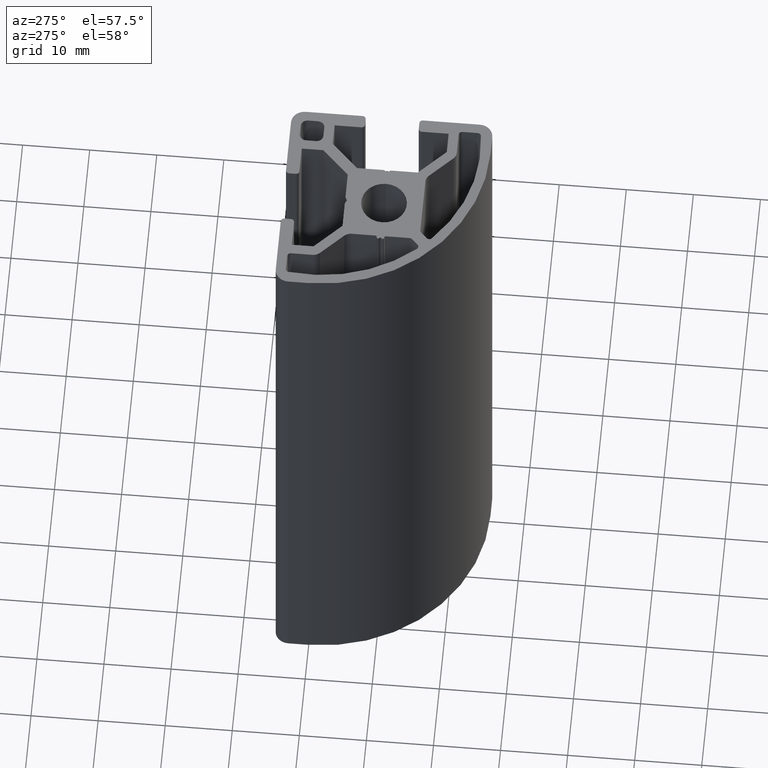
[diagram: clean part render]
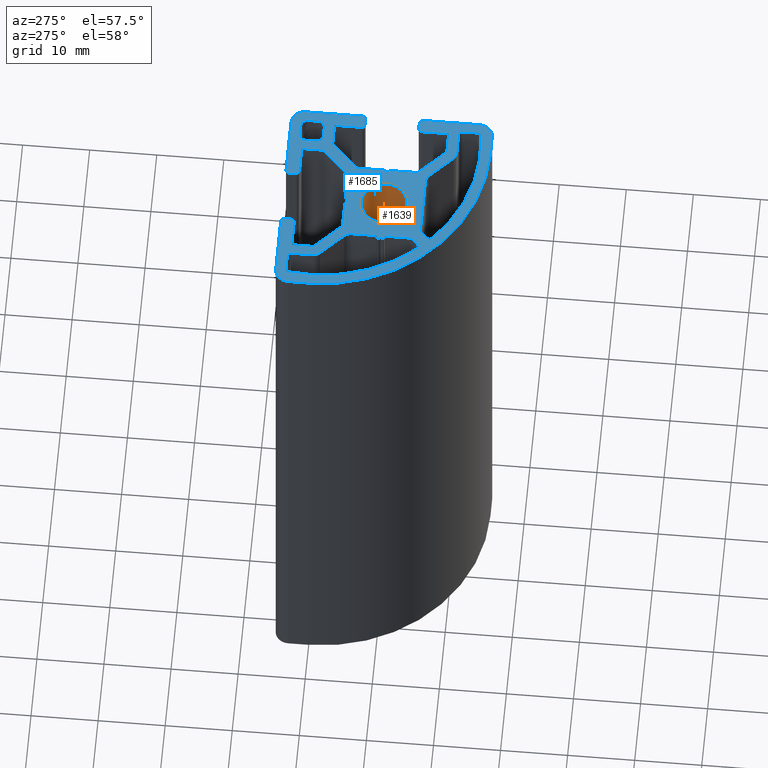
[diagram: same view with the hole feature highlighted: cylindrical wall and planar end face, labeled with their STEP entity ids]
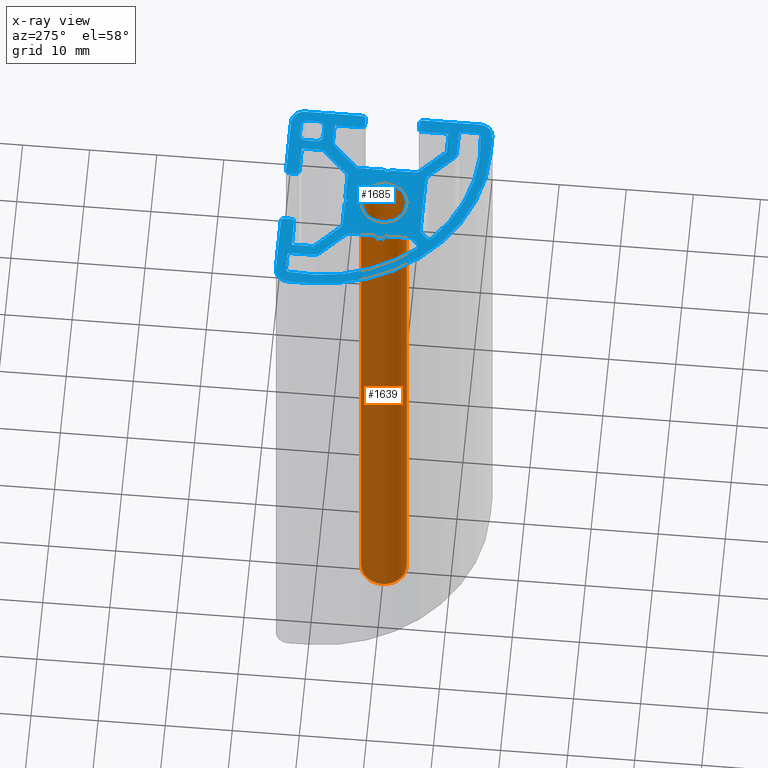
[diagram: x-ray of the same camera — body ghosted, the hole faces saturated]
A machine part, auxiliary view. The highlighted faces form one hole feature of diameter 6.8 mm: the cylindrical wall (entity #1639, orange) and its adjacent planar end face (entity #1685, blue) — they share a circular edge in the B-rep.
The next image is the same camera in x-ray (body ghosted, the hole faces saturated) — the bore reads through the body.
Wall:
#15=FACE_BOUND('',#191,.T.);
#106=FACE_OUTER_BOUND('',#190,.T.);
#190=EDGE_LOOP('',(#1209));
#191=EDGE_LOOP('',(#1210));
#642=CIRCLE('',#1758,3.4);
#643=CIRCLE('',#1759,3.4);
#738=VERTEX_POINT('',#2513);
#739=VERTEX_POINT('',#2515);
#933=EDGE_CURVE('',#738,#738,#642,.T.);
#934=EDGE_CURVE('',#739,#739,#643,.T.);
#1209=ORIENTED_EDGE('',*,*,#933,.F.);
#1210=ORIENTED_EDGE('',*,*,#934,.F.);
#1591=CYLINDRICAL_SURFACE('',#1757,3.4);
#1639=ADVANCED_FACE('',(#106,#15),#1591,.F.);
#1757=AXIS2_PLACEMENT_3D('',#2512,#2033,#2034);
#1758=AXIS2_PLACEMENT_3D('',#2514,#2035,#2036);
#1759=AXIS2_PLACEMENT_3D('',#2516,#2037,#2038);
#2033=DIRECTION('center_axis',(0.,0.,1.));
#2034=DIRECTION('ref_axis',(-1.,0.,0.));
#2035=DIRECTION('center_axis',(0.,0.,-1.));
#2036=DIRECTION('ref_axis',(-1.,0.,0.));
#2037=DIRECTION('center_axis',(0.,0.,1.));
#2038=DIRECTION('ref_axis',(-1.,0.,0.));
#2512=CARTESIAN_POINT('Origin',(0.,0.,0.));
#2513=CARTESIAN_POINT('',(3.4,-4.163799117101E-16,100.));
#2514=CARTESIAN_POINT('Origin',(0.,0.,100.));
#2515=CARTESIAN_POINT('',(3.4,4.163799117101E-16,0.));
#2516=CARTESIAN_POINT('Origin',(0.,0.,0.));
End face:
#16=FACE_BOUND('',#238,.T.);
#17=FACE_BOUND('',#239,.T.);
#18=FACE_BOUND('',#240,.T.);
#19=FACE_BOUND('',#241,.T.);
#71=PLANE('',#1831);
#152=FACE_OUTER_BOUND('',#237,.T.);
#237=EDGE_LOOP('',(#1391,#1392,#1393,#1394,#1395,#1396,#1397,#1398,#1399,
#1400,#1401,#1402,#1403,#1404,#1405,#1406,#1407,#1408,#1409,#1410,#1411,
#1412,#1413,#1414,#1415,#1416,#1417,#1418,#1419,#1420,#1421,#1422,#1423,
#1424,#1425,#1426,#1427,#1428,#1429,#1430,#1431,#1432));
#238=EDGE_LOOP('',(#1433,#1434,#1435,#1436,#1437,#1438,#1439,#1440));
#239=EDGE_LOOP('',(#1441));
#240=EDGE_LOOP('',(#1442,#1443,#1444,#1445,#1446,#1447,#1448,#1449,#1450,
#1451,#1452,#1453));
#241=EDGE_LOOP('',(#1454,#1455,#1456,#1457,#1458,#1459,#1460,#1461,#1462,
#1463,#1464,#1465,#1466,#1467,#1468,#1469,#1470,#1471,#1472));
#255=LINE('',#2343,#434);
#259=LINE('',#2355,#438);
#263=LINE('',#2367,#442);
#267=LINE('',#2379,#446);
#270=LINE('',#2385,#449);
#274=LINE('',#2397,#453);
#277=LINE('',#2403,#456);
#281=LINE('',#2415,#460);
#284=LINE('',#2421,#463);
#288=LINE('',#2433,#467);
#291=LINE('',#2443,#470);
#296=LINE('',#2457,#475);
#300=LINE('',#2469,#479);
#304=LINE('',#2481,#483);
#310=LINE('',#2505,#489);
#315=LINE('',#2529,#494);
#319=LINE('',#2537,#498);
#322=LINE('',#2543,#501);
#325=LINE('',#2549,#504);
#328=LINE('',#2555,#507);
#331=LINE('',#2561,#510);
#335=LINE('',#2573,#514);
#341=LINE('',#2594,#520);
#345=LINE('',#2606,#524);
#348=LINE('',#2612,#527);
#351=LINE('',#2618,#530);
#354=LINE('',#2623,#533);
#356=LINE('',#2628,#535);
#360=LINE('',#2636,#539);
#363=LINE('',#2642,#542);
#366=LINE('',#2648,#545);
#370=LINE('',#2660,#549);
#376=LINE('',#2681,#555);
#380=LINE('',#2693,#559);
#383=LINE('',#2699,#562);
#386=LINE('',#2705,#565);
#389=LINE('',#2711,#568);
#392=LINE('',#2717,#571);
#395=LINE('',#2722,#574);
#399=LINE('',#2735,#578);
#403=LINE('',#2747,#582);
#407=LINE('',#2759,#586);
#411=LINE('',#2770,#590);
#413=LINE('',#2774,#592);
#418=LINE('',#2783,#597);
#419=LINE('',#2786,#598);
#424=LINE('',#2795,#603);
#425=LINE('',#2798,#604);
#426=LINE('',#2801,#605);
#434=VECTOR('',#1863,2.30350930433294);
#438=VECTOR('',#1875,3.22720692200534);
#442=VECTOR('',#1887,4.6970550596017);
#446=VECTOR('',#1899,3.69617781933827);
#449=VECTOR('',#1904,0.379519655581904);
#453=VECTOR('',#1916,0.321649093823866);
#456=VECTOR('',#1921,0.321649093823866);
#460=VECTOR('',#1933,0.379519655930177);
#463=VECTOR('',#1938,3.68612460949775);
#467=VECTOR('',#1950,1.30567125829762);
#470=VECTOR('',#1961,8.65025255662917);
#475=VECTOR('',#1974,4.69705629237777);
#479=VECTOR('',#1986,3.22720633861424);
#483=VECTOR('',#1998,2.30350872507388);
#489=VECTOR('',#2024,1.30567179823684);
#494=VECTOR('',#2049,0.599999998036611);
#498=VECTOR('',#2055,0.599999998036732);
#501=VECTOR('',#2060,4.00759256455896);
#504=VECTOR('',#2065,5.61837777381443);
#507=VECTOR('',#2070,3.22720610284211);
#510=VECTOR('',#2075,4.00000079419816);
#514=VECTOR('',#2087,1.00000000405103);
#520=VECTOR('',#2107,1.00000000405103);
#524=VECTOR('',#2119,3.99999920386029);
#527=VECTOR('',#2124,3.22720691573065);
#530=VECTOR('',#2129,5.61837660081023);
#533=VECTOR('',#2134,4.00759173045945);
#535=VECTOR('',#2138,4.00759256455896);
#539=VECTOR('',#2144,5.61837660247784);
#542=VECTOR('',#2149,3.22720633271489);
#545=VECTOR('',#2154,4.00000022274413);
#549=VECTOR('',#2166,1.00000000405103);
#555=VECTOR('',#2186,1.00000000405103);
#559=VECTOR('',#2198,3.99999977285731);
#562=VECTOR('',#2203,3.22720633253755);
#565=VECTOR('',#2208,5.61837662585642);
#568=VECTOR('',#2213,4.00759254881794);
#571=VECTOR('',#2218,0.599999998036731);
#574=VECTOR('',#2223,0.599999998036731);
#578=VECTOR('',#2235,1.49999999459971);
#582=VECTOR('',#2247,1.49999999355515);
#586=VECTOR('',#2259,1.49999999459971);
#590=VECTOR('',#2271,1.49999999355732);
#592=VECTOR('',#2275,2.99999997642104);
#597=VECTOR('',#2282,8.50000003915042);
#598=VECTOR('',#2285,8.49999995006791);
#603=VECTOR('',#2292,8.49999997677015);
#604=VECTOR('',#2295,2.99999995855649);
#605=VECTOR('',#2298,8.49999999314448);
#610=CIRCLE('',#1695,23.5);
#612=CIRCLE('',#1698,0.500000002025547);
#614=CIRCLE('',#1702,0.500000002025547);
#616=CIRCLE('',#1706,1.50000000000023);
#618=CIRCLE('',#1710,1.50000000000023);
#620=CIRCLE('',#1715,0.180000344789906);
#622=CIRCLE('',#1720,0.180000344789906);
#624=CIRCLE('',#1725,0.500000002025547);
#626=CIRCLE('',#1729,0.500000002025547);
#628=CIRCLE('',#1733,1.50000000000023);
#630=CIRCLE('',#1737,1.50000000000023);
#632=CIRCLE('',#1741,0.500000002025547);
#634=CIRCLE('',#1745,0.500000002025547);
#636=CIRCLE('',#1748,23.5);
#638=CIRCLE('',#1751,0.500000002025547);
#640=CIRCLE('',#1755,0.500000002025547);
#642=CIRCLE('',#1758,3.4);
#644=CIRCLE('',#1761,24.9999999999996);
#646=CIRCLE('',#1770,0.500000002025547);
#648=CIRCLE('',#1774,0.500000002025547);
#650=CIRCLE('',#1777,0.500000002025547);
#652=CIRCLE('',#1781,0.500000002025547);
#654=CIRCLE('',#1792,0.500000002025547);
#656=CIRCLE('',#1796,0.500000002025547);
#658=CIRCLE('',#1799,0.500000002025548);
#660=CIRCLE('',#1803,0.500000002025547);
#662=CIRCLE('',#1812,1.00000000405112);
#664=CIRCLE('',#1816,1.00000000405112);
#666=CIRCLE('',#1820,1.00000000405113);
#668=CIRCLE('',#1824,1.00000000405113);
#670=CIRCLE('',#1832,2.00000000847673);
#671=CIRCLE('',#1833,2.00000000847673);
#672=CIRCLE('',#1834,2.00000000847673);
#676=VERTEX_POINT('',#2327);
#677=VERTEX_POINT('',#2328);
#680=VERTEX_POINT('',#2336);
#682=VERTEX_POINT('',#2342);
#684=VERTEX_POINT('',#2348);
#686=VERTEX_POINT('',#2354);
#688=VERTEX_POINT('',#2360);
#690=VERTEX_POINT('',#2366);
#692=VERTEX_POINT('',#2372);
#694=VERTEX_POINT('',#2378);
#696=VERTEX_POINT('',#2384);
#698=VERTEX_POINT('',#2390);
#700=VERTEX_POINT('',#2396);
#702=VERTEX_POINT('',#2402);
#704=VERTEX_POINT('',#2408);
#706=VERTEX_POINT('',#2414);
#708=VERTEX_POINT('',#2420);
#710=VERTEX_POINT('',#2426);
#712=VERTEX_POINT('',#2432);
#714=VERTEX_POINT('',#2441);
#715=VERTEX_POINT('',#2442);
#718=VERTEX_POINT('',#2450);
#720=VERTEX_POINT('',#2456);
#722=VERTEX_POINT('',#2462);
#724=VERTEX_POINT('',#2468);
#726=VERTEX_POINT('',#2474);
#728=VERTEX_POINT('',#2480);
#730=VERTEX_POINT('',#2486);
#732=VERTEX_POINT('',#2492);
#734=VERTEX_POINT('',#2498);
#736=VERTEX_POINT('',#2504);
#738=VERTEX_POINT('',#2513);
#740=VERTEX_POINT('',#2518);
#741=VERTEX_POINT('',#2519);
#744=VERTEX_POINT('',#2527);
#745=VERTEX_POINT('',#2528);
#748=VERTEX_POINT('',#2536);
#750=VERTEX_POINT('',#2542);
#752=VERTEX_POINT('',#2548);
#754=VERTEX_POINT('',#2554);
#756=VERTEX_POINT('',#2560);
#758=VERTEX_POINT('',#2566);
#760=VERTEX_POINT('',#2572);
#762=VERTEX_POINT('',#2578);
#764=VERTEX_POINT('',#2584);
#765=VERTEX_POINT('',#2585);
#768=VERTEX_POINT('',#2593);
#770=VERTEX_POINT('',#2599);
#772=VERTEX_POINT('',#2605);
#774=VERTEX_POINT('',#2611);
#776=VERTEX_POINT('',#2617);
#778=VERTEX_POINT('',#2626);
#779=VERTEX_POINT('',#2627);
#782=VERTEX_POINT('',#2635);
#784=VERTEX_POINT('',#2641);
#786=VERTEX_POINT('',#2647);
#788=VERTEX_POINT('',#2653);
#790=VERTEX_POINT('',#2659);
#792=VERTEX_POINT('',#2665);
#794=VERTEX_POINT('',#2671);
#795=VERTEX_POINT('',#2672);
#798=VERTEX_POINT('',#2680);
#800=VERTEX_POINT('',#2686);
#802=VERTEX_POINT('',#2692);
#804=VERTEX_POINT('',#2698);
#806=VERTEX_POINT('',#2704);
#808=VERTEX_POINT('',#2710);
#810=VERTEX_POINT('',#2716);
#812=VERTEX_POINT('',#2725);
#813=VERTEX_POINT('',#2726);
#816=VERTEX_POINT('',#2734);
#818=VERTEX_POINT('',#2740);
#820=VERTEX_POINT('',#2746);
#822=VERTEX_POINT('',#2752);
#824=VERTEX_POINT('',#2758);
#826=VERTEX_POINT('',#2764);
#828=VERTEX_POINT('',#2773);
#831=VERTEX_POINT('',#2781);
#832=VERTEX_POINT('',#2785);
#835=VERTEX_POINT('',#2793);
#836=VERTEX_POINT('',#2797);
#837=VERTEX_POINT('',#2799);
#840=EDGE_CURVE('',#676,#677,#610,.T.);
#844=EDGE_CURVE('',#677,#680,#612,.T.);
#847=EDGE_CURVE('',#680,#682,#255,.T.);
#850=EDGE_CURVE('',#682,#684,#614,.T.);
#853=EDGE_CURVE('',#684,#686,#259,.T.);
#856=EDGE_CURVE('',#686,#688,#616,.T.);
#859=EDGE_CURVE('',#688,#690,#263,.T.);
#862=EDGE_CURVE('',#690,#692,#618,.T.);
#865=EDGE_CURVE('',#692,#694,#267,.T.);
#868=EDGE_CURVE('',#694,#696,#270,.T.);
#871=EDGE_CURVE('',#696,#698,#620,.T.);
#874=EDGE_CURVE('',#698,#700,#274,.T.);
#877=EDGE_CURVE('',#700,#702,#277,.T.);
#880=EDGE_CURVE('',#702,#704,#622,.T.);
#883=EDGE_CURVE('',#704,#706,#281,.T.);
#886=EDGE_CURVE('',#706,#708,#284,.T.);
#889=EDGE_CURVE('',#708,#710,#624,.T.);
#892=EDGE_CURVE('',#710,#712,#288,.T.);
#895=EDGE_CURVE('',#712,#676,#626,.T.);
#897=EDGE_CURVE('',#714,#715,#291,.T.);
#901=EDGE_CURVE('',#715,#718,#628,.T.);
#904=EDGE_CURVE('',#718,#720,#296,.T.);
#907=EDGE_CURVE('',#720,#722,#630,.T.);
#910=EDGE_CURVE('',#722,#724,#300,.T.);
#913=EDGE_CURVE('',#724,#726,#632,.T.);
#916=EDGE_CURVE('',#726,#728,#304,.T.);
#919=EDGE_CURVE('',#728,#730,#634,.T.);
#922=EDGE_CURVE('',#730,#732,#636,.T.);
#925=EDGE_CURVE('',#732,#734,#638,.T.);
#928=EDGE_CURVE('',#734,#736,#310,.T.);
#931=EDGE_CURVE('',#736,#714,#640,.T.);
#933=EDGE_CURVE('',#738,#738,#642,.T.);
#935=EDGE_CURVE('',#740,#741,#644,.T.);
#939=EDGE_CURVE('',#744,#745,#315,.T.);
#943=EDGE_CURVE('',#748,#744,#319,.T.);
#946=EDGE_CURVE('',#750,#748,#322,.T.);
#949=EDGE_CURVE('',#752,#750,#325,.T.);
#952=EDGE_CURVE('',#754,#752,#328,.T.);
#955=EDGE_CURVE('',#756,#754,#331,.T.);
#958=EDGE_CURVE('',#758,#756,#646,.T.);
#961=EDGE_CURVE('',#760,#758,#335,.T.);
#964=EDGE_CURVE('',#762,#760,#648,.T.);
#967=EDGE_CURVE('',#764,#765,#650,.T.);
#971=EDGE_CURVE('',#768,#764,#341,.T.);
#974=EDGE_CURVE('',#770,#768,#652,.T.);
#977=EDGE_CURVE('',#772,#770,#345,.T.);
#980=EDGE_CURVE('',#774,#772,#348,.T.);
#983=EDGE_CURVE('',#776,#774,#351,.T.);
#986=EDGE_CURVE('',#745,#776,#354,.T.);
#988=EDGE_CURVE('',#778,#779,#356,.T.);
#992=EDGE_CURVE('',#779,#782,#360,.T.);
#995=EDGE_CURVE('',#782,#784,#363,.T.);
#998=EDGE_CURVE('',#784,#786,#366,.T.);
#1001=EDGE_CURVE('',#786,#788,#654,.T.);
#1004=EDGE_CURVE('',#788,#790,#370,.T.);
#1007=EDGE_CURVE('',#790,#792,#656,.T.);
#1010=EDGE_CURVE('',#794,#795,#658,.T.);
#1014=EDGE_CURVE('',#795,#798,#376,.T.);
#1017=EDGE_CURVE('',#798,#800,#660,.T.);
#1020=EDGE_CURVE('',#800,#802,#380,.T.);
#1023=EDGE_CURVE('',#802,#804,#383,.T.);
#1026=EDGE_CURVE('',#804,#806,#386,.T.);
#1029=EDGE_CURVE('',#806,#808,#389,.T.);
#1032=EDGE_CURVE('',#808,#810,#392,.T.);
#1035=EDGE_CURVE('',#810,#778,#395,.T.);
#1037=EDGE_CURVE('',#812,#813,#662,.T.);
#1041=EDGE_CURVE('',#816,#812,#399,.T.);
#1044=EDGE_CURVE('',#818,#816,#664,.T.);
#1047=EDGE_CURVE('',#820,#818,#403,.T.);
#1050=EDGE_CURVE('',#822,#820,#666,.T.);
#1053=EDGE_CURVE('',#824,#822,#407,.T.);
#1056=EDGE_CURVE('',#826,#824,#668,.T.);
#1059=EDGE_CURVE('',#813,#826,#411,.T.);
#1061=EDGE_CURVE('',#740,#828,#413,.T.);
#1066=EDGE_CURVE('',#831,#765,#418,.T.);
#1067=EDGE_CURVE('',#762,#832,#419,.T.);
#1072=EDGE_CURVE('',#835,#792,#424,.T.);
#1073=EDGE_CURVE('',#836,#741,#425,.T.);
#1074=EDGE_CURVE('',#837,#836,#670,.T.);
#1075=EDGE_CURVE('',#794,#837,#426,.T.);
#1076=EDGE_CURVE('',#832,#835,#671,.T.);
#1077=EDGE_CURVE('',#828,#831,#672,.T.);
#1391=ORIENTED_EDGE('',*,*,#935,.T.);
#1392=ORIENTED_EDGE('',*,*,#1073,.F.);
#1393=ORIENTED_EDGE('',*,*,#1074,.F.);
#1394=ORIENTED_EDGE('',*,*,#1075,.F.);
#1395=ORIENTED_EDGE('',*,*,#1010,.T.);
#1396=ORIENTED_EDGE('',*,*,#1014,.T.);
#1397=ORIENTED_EDGE('',*,*,#1017,.T.);
#1398=ORIENTED_EDGE('',*,*,#1020,.T.);
#1399=ORIENTED_EDGE('',*,*,#1023,.T.);
#1400=ORIENTED_EDGE('',*,*,#1026,.T.);
#1401=ORIENTED_EDGE('',*,*,#1029,.T.);
#1402=ORIENTED_EDGE('',*,*,#1032,.T.);
#1403=ORIENTED_EDGE('',*,*,#1035,.T.);
#1404=ORIENTED_EDGE('',*,*,#988,.T.);
#1405=ORIENTED_EDGE('',*,*,#992,.T.);
#1406=ORIENTED_EDGE('',*,*,#995,.T.);
#1407=ORIENTED_EDGE('',*,*,#998,.T.);
#1408=ORIENTED_EDGE('',*,*,#1001,.T.);
#1409=ORIENTED_EDGE('',*,*,#1004,.T.);
#1410=ORIENTED_EDGE('',*,*,#1007,.T.);
#1411=ORIENTED_EDGE('',*,*,#1072,.F.);
#1412=ORIENTED_EDGE('',*,*,#1076,.F.);
#1413=ORIENTED_EDGE('',*,*,#1067,.F.);
#1414=ORIENTED_EDGE('',*,*,#964,.T.);
#1415=ORIENTED_EDGE('',*,*,#961,.T.);
#1416=ORIENTED_EDGE('',*,*,#958,.T.);
#1417=ORIENTED_EDGE('',*,*,#955,.T.);
#1418=ORIENTED_EDGE('',*,*,#952,.T.);
#1419=ORIENTED_EDGE('',*,*,#949,.T.);
#1420=ORIENTED_EDGE('',*,*,#946,.T.);
#1421=ORIENTED_EDGE('',*,*,#943,.T.);
#1422=ORIENTED_EDGE('',*,*,#939,.T.);
#1423=ORIENTED_EDGE('',*,*,#986,.T.);
#1424=ORIENTED_EDGE('',*,*,#983,.T.);
#1425=ORIENTED_EDGE('',*,*,#980,.T.);
#1426=ORIENTED_EDGE('',*,*,#977,.T.);
#1427=ORIENTED_EDGE('',*,*,#974,.T.);
#1428=ORIENTED_EDGE('',*,*,#971,.T.);
#1429=ORIENTED_EDGE('',*,*,#967,.T.);
#1430=ORIENTED_EDGE('',*,*,#1066,.F.);
#1431=ORIENTED_EDGE('',*,*,#1077,.F.);
#1432=ORIENTED_EDGE('',*,*,#1061,.F.);
#1433=ORIENTED_EDGE('',*,*,#1037,.T.);
#1434=ORIENTED_EDGE('',*,*,#1059,.T.);
#1435=ORIENTED_EDGE('',*,*,#1056,.T.);
#1436=ORIENTED_EDGE('',*,*,#1053,.T.);
#1437=ORIENTED_EDGE('',*,*,#1050,.T.);
#1438=ORIENTED_EDGE('',*,*,#1047,.T.);
#1439=ORIENTED_EDGE('',*,*,#1044,.T.);
#1440=ORIENTED_EDGE('',*,*,#1041,.T.);
#1441=ORIENTED_EDGE('',*,*,#933,.T.);
#1442=ORIENTED_EDGE('',*,*,#897,.T.);
#1443=ORIENTED_EDGE('',*,*,#901,.T.);
#1444=ORIENTED_EDGE('',*,*,#904,.T.);
#1445=ORIENTED_EDGE('',*,*,#907,.T.);
#1446=ORIENTED_EDGE('',*,*,#910,.T.);
#1447=ORIENTED_EDGE('',*,*,#913,.T.);
#1448=ORIENTED_EDGE('',*,*,#916,.T.);
#1449=ORIENTED_EDGE('',*,*,#919,.T.);
#1450=ORIENTED_EDGE('',*,*,#922,.T.);
#1451=ORIENTED_EDGE('',*,*,#925,.T.);
#1452=ORIENTED_EDGE('',*,*,#928,.T.);
#1453=ORIENTED_EDGE('',*,*,#931,.T.);
#1454=ORIENTED_EDGE('',*,*,#840,.T.);
#1455=ORIENTED_EDGE('',*,*,#844,.T.);
#1456=ORIENTED_EDGE('',*,*,#847,.T.);
#1457=ORIENTED_EDGE('',*,*,#850,.T.);
#1458=ORIENTED_EDGE('',*,*,#853,.T.);
#1459=ORIENTED_EDGE('',*,*,#856,.T.);
#1460=ORIENTED_EDGE('',*,*,#859,.T.);
#1461=ORIENTED_EDGE('',*,*,#862,.T.);
#1462=ORIENTED_EDGE('',*,*,#865,.T.);
#1463=ORIENTED_EDGE('',*,*,#868,.T.);
#1464=ORIENTED_EDGE('',*,*,#871,.T.);
#1465=ORIENTED_EDGE('',*,*,#874,.T.);
#1466=ORIENTED_EDGE('',*,*,#877,.T.);
#1467=ORIENTED_EDGE('',*,*,#880,.T.);
#1468=ORIENTED_EDGE('',*,*,#883,.T.);
#1469=ORIENTED_EDGE('',*,*,#886,.T.);
#1470=ORIENTED_EDGE('',*,*,#889,.T.);
#1471=ORIENTED_EDGE('',*,*,#892,.T.);
#1472=ORIENTED_EDGE('',*,*,#895,.T.);
#1685=ADVANCED_FACE('',(#152,#16,#17,#18,#19),#71,.T.);
#1695=AXIS2_PLACEMENT_3D('',#2329,#1848,#1849);
#1698=AXIS2_PLACEMENT_3D('',#2337,#1856,#1857);
#1702=AXIS2_PLACEMENT_3D('',#2349,#1868,#1869);
#1706=AXIS2_PLACEMENT_3D('',#2361,#1880,#1881);
#1710=AXIS2_PLACEMENT_3D('',#2373,#1892,#1893);
#1715=AXIS2_PLACEMENT_3D('',#2391,#1909,#1910);
#1720=AXIS2_PLACEMENT_3D('',#2409,#1926,#1927);
#1725=AXIS2_PLACEMENT_3D('',#2427,#1943,#1944);
#1729=AXIS2_PLACEMENT_3D('',#2438,#1955,#1956);
#1733=AXIS2_PLACEMENT_3D('',#2451,#1967,#1968);
#1737=AXIS2_PLACEMENT_3D('',#2463,#1979,#1980);
#1741=AXIS2_PLACEMENT_3D('',#2475,#1991,#1992);
#1745=AXIS2_PLACEMENT_3D('',#2487,#2003,#2004);
#1748=AXIS2_PLACEMENT_3D('',#2493,#2010,#2011);
#1751=AXIS2_PLACEMENT_3D('',#2499,#2017,#2018);
#1755=AXIS2_PLACEMENT_3D('',#2510,#2029,#2030);
#1758=AXIS2_PLACEMENT_3D('',#2514,#2035,#2036);
#1761=AXIS2_PLACEMENT_3D('',#2520,#2041,#2042);
#1770=AXIS2_PLACEMENT_3D('',#2567,#2080,#2081);
#1774=AXIS2_PLACEMENT_3D('',#2579,#2092,#2093);
#1777=AXIS2_PLACEMENT_3D('',#2586,#2099,#2100);
#1781=AXIS2_PLACEMENT_3D('',#2600,#2112,#2113);
#1792=AXIS2_PLACEMENT_3D('',#2654,#2159,#2160);
#1796=AXIS2_PLACEMENT_3D('',#2666,#2171,#2172);
#1799=AXIS2_PLACEMENT_3D('',#2673,#2178,#2179);
#1803=AXIS2_PLACEMENT_3D('',#2687,#2191,#2192);
#1812=AXIS2_PLACEMENT_3D('',#2727,#2227,#2228);
#1816=AXIS2_PLACEMENT_3D('',#2741,#2240,#2241);
#1820=AXIS2_PLACEMENT_3D('',#2753,#2252,#2253);
#1824=AXIS2_PLACEMENT_3D('',#2765,#2264,#2265);
#1831=AXIS2_PLACEMENT_3D('',#2796,#2293,#2294);
#1832=AXIS2_PLACEMENT_3D('',#2800,#2296,#2297);
#1833=AXIS2_PLACEMENT_3D('',#2802,#2299,#2300);
#1834=AXIS2_PLACEMENT_3D('',#2803,#2301,#2302);
#1848=DIRECTION('center_axis',(0.,0.,-1.));
#1849=DIRECTION('ref_axis',(0.991456891187347,-0.130434784153315,0.));
#1856=DIRECTION('center_axis',(0.,0.,-1.));
#1857=DIRECTION('ref_axis',(0.,-1.,0.));
#1863=DIRECTION('',(1.,-2.89182168060744E-15,0.));
#1868=DIRECTION('center_axis',(0.,0.,-1.));
#1869=DIRECTION('ref_axis',(-1.,0.,0.));
#1875=DIRECTION('',(-6.88039565764986E-16,-1.,0.));
#1880=DIRECTION('center_axis',(0.,0.,1.));
#1881=DIRECTION('ref_axis',(-1.,1.48029736616665E-15,0.));
#1887=DIRECTION('',(0.707106779731152,-0.707106782641943,0.));
#1892=DIRECTION('center_axis',(0.,0.,-1.));
#1893=DIRECTION('ref_axis',(-1.,0.,0.));
#1899=DIRECTION('',(0.,-1.,0.));
#1904=DIRECTION('',(-0.965925825794794,-0.258819046947178,0.));
#1909=DIRECTION('center_axis',(0.,0.,1.));
#1910=DIRECTION('ref_axis',(-0.258819046947179,0.965925825794794,0.));
#1916=DIRECTION('',(0.64518870610784,-0.764023254561595,0.));
#1921=DIRECTION('',(-0.645188706107819,-0.764023254561612,0.));
#1926=DIRECTION('center_axis',(0.,0.,1.));
#1927=DIRECTION('ref_axis',(-0.76402325456161,0.645188706107822,0.));
#1933=DIRECTION('',(0.96592582579478,-0.258819046947229,0.));
#1938=DIRECTION('',(-9.12614039861046E-11,-1.,0.));
#1943=DIRECTION('center_axis',(0.,0.,-1.));
#1944=DIRECTION('ref_axis',(-0.707106779731151,0.707106782641944,0.));
#1950=DIRECTION('',(-0.707106782641944,-0.707106779731151,0.));
#1955=DIRECTION('center_axis',(0.,0.,-1.));
#1956=DIRECTION('ref_axis',(0.748836915897318,0.662754308465357,0.));
#1961=DIRECTION('',(1.,-1.28345735266924E-15,0.));
#1967=DIRECTION('center_axis',(0.,0.,-1.));
#1968=DIRECTION('ref_axis',(-0.707106782641958,-0.707106779731137,0.));
#1974=DIRECTION('',(0.707106779731137,-0.707106782641958,0.));
#1979=DIRECTION('center_axis',(0.,0.,1.));
#1980=DIRECTION('ref_axis',(-0.707106782641958,-0.707106779731137,0.));
#1986=DIRECTION('',(1.,-1.03205953521573E-15,0.));
#1991=DIRECTION('center_axis',(0.,0.,-1.));
#1992=DIRECTION('ref_axis',(-1.,0.,0.));
#1998=DIRECTION('',(-1.92788160520564E-15,-1.,0.));
#2003=DIRECTION('center_axis',(0.,0.,-1.));
#2004=DIRECTION('ref_axis',(-0.130434781104332,0.991456891588467,0.));
#2010=DIRECTION('center_axis',(0.,0.,-1.));
#2011=DIRECTION('ref_axis',(0.662754304910145,0.74883691904384,0.));
#2017=DIRECTION('center_axis',(0.,0.,-1.));
#2018=DIRECTION('ref_axis',(0.707106779731151,-0.707106782641944,0.));
#2024=DIRECTION('',(0.707106782641945,0.70710677973115,0.));
#2029=DIRECTION('center_axis',(0.,0.,-1.));
#2030=DIRECTION('ref_axis',(-1.11022302012761E-15,-1.,0.));
#2035=DIRECTION('center_axis',(0.,0.,-1.));
#2036=DIRECTION('ref_axis',(-1.,0.,0.));
#2041=DIRECTION('center_axis',(0.,0.,1.));
#2042=DIRECTION('ref_axis',(0.991456891187347,-0.130434784153314,0.));
#2049=DIRECTION('',(-0.866025402833918,0.50000000164635,0.));
#2055=DIRECTION('',(-0.866025402833744,-0.500000001646651,0.));
#2060=DIRECTION('',(-1.,1.10811965711623E-15,0.));
#2065=DIRECTION('',(-0.707106782641944,-0.707106779731151,0.));
#2070=DIRECTION('',(-1.37607948082078E-15,-1.,0.));
#2075=DIRECTION('',(1.,-1.11022280419093E-15,0.));
#2080=DIRECTION('center_axis',(0.,0.,1.));
#2081=DIRECTION('ref_axis',(1.,0.,0.));
#2087=DIRECTION('',(-2.22044604025522E-15,-1.,0.));
#2092=DIRECTION('center_axis',(0.,0.,1.));
#2093=DIRECTION('ref_axis',(-1.11022302012761E-15,-1.,0.));
#2099=DIRECTION('center_axis',(0.,0.,1.));
#2100=DIRECTION('ref_axis',(-1.,0.,0.));
#2107=DIRECTION('',(1.11022302012761E-15,1.,0.));
#2112=DIRECTION('center_axis',(0.,0.,1.));
#2113=DIRECTION('ref_axis',(8.4932061039762E-12,1.,0.));
#2119=DIRECTION('',(1.,4.91268235061046E-11,0.));
#2124=DIRECTION('',(3.44019783523422E-16,1.,0.));
#2129=DIRECTION('',(-0.707106779731151,0.707106782641944,0.));
#2134=DIRECTION('',(-1.,1.22447247596267E-13,0.));
#2138=DIRECTION('',(1.66217948567435E-15,1.,0.));
#2144=DIRECTION('',(0.707106782641944,0.707106779731151,0.));
#2149=DIRECTION('',(1.,-1.03205953710234E-15,0.));
#2154=DIRECTION('',(-1.66533444420187E-15,-1.,0.));
#2159=DIRECTION('center_axis',(0.,0.,1.));
#2160=DIRECTION('ref_axis',(1.,-1.11022302012761E-15,0.));
#2166=DIRECTION('',(1.,-1.66533453019141E-15,0.));
#2171=DIRECTION('center_axis',(0.,0.,1.));
#2172=DIRECTION('ref_axis',(0.,1.,0.));
#2178=DIRECTION('center_axis',(0.,0.,1.));
#2179=DIRECTION('ref_axis',(-1.,1.11022302012761E-15,0.));
#2186=DIRECTION('',(-1.,1.11022302012761E-15,0.));
#2191=DIRECTION('center_axis',(0.,0.,1.));
#2192=DIRECTION('ref_axis',(0.,-1.,0.));
#2198=DIRECTION('',(-2.22044617533984E-15,-1.,0.));
#2203=DIRECTION('',(-1.,1.37607938287874E-15,0.));
#2208=DIRECTION('',(-0.707106779731137,0.707106782641958,0.));
#2213=DIRECTION('',(1.38514957683588E-15,1.,0.));
#2218=DIRECTION('',(-0.500000001646651,0.866025402833744,0.));
#2223=DIRECTION('',(0.50000000164635,0.866025402833918,0.));
#2227=DIRECTION('center_axis',(0.,0.,-1.));
#2228=DIRECTION('ref_axis',(1.,-2.22044604025502E-15,0.));
#2235=DIRECTION('',(-1.,1.48029737149623E-15,0.));
#2240=DIRECTION('center_axis',(0.,0.,-1.));
#2241=DIRECTION('ref_axis',(2.22044604025501E-15,1.,0.));
#2247=DIRECTION('',(0.,-1.,0.));
#2252=DIRECTION('center_axis',(0.,0.,-1.));
#2253=DIRECTION('ref_axis',(-1.,2.22044604025501E-15,0.));
#2259=DIRECTION('',(1.,-4.14483264018945E-14,0.));
#2264=DIRECTION('center_axis',(0.,0.,-1.));
#2265=DIRECTION('ref_axis',(-3.99680287245902E-14,-1.,0.));
#2271=DIRECTION('',(2.22044605878739E-15,1.,0.));
#2275=DIRECTION('',(0.,1.,0.));
#2282=DIRECTION('',(1.,-1.51799940237017E-11,0.));
#2285=DIRECTION('',(1.,-1.51799940237017E-11,0.));
#2292=DIRECTION('',(2.97539770897479E-11,-1.,0.));
#2293=DIRECTION('center_axis',(0.,0.,1.));
#2294=DIRECTION('ref_axis',(1.,0.,0.));
#2295=DIRECTION('',(-1.,0.,0.));
#2296=DIRECTION('center_axis',(0.,0.,-1.));
#2297=DIRECTION('ref_axis',(0.,1.,0.));
#2298=DIRECTION('',(2.97539770897479E-11,-1.,0.));
#2299=DIRECTION('center_axis',(0.,0.,-1.));
#2300=DIRECTION('ref_axis',(-1.,3.84254848573491E-10,0.));
#2301=DIRECTION('center_axis',(0.,0.,-1.));
#2302=DIRECTION('ref_axis',(0.,-1.,0.));
#2327=CARTESIAN_POINT('',(-7.59766749062013,-5.57472623828938,100.));
#2328=CARTESIAN_POINT('',(-13.2992369099358,13.0652174382494,100.));
#2329=CARTESIAN_POINT('Origin',(10.0000000329668,10.0000000106465,100.));
#2336=CARTESIAN_POINT('',(-12.8035084623339,13.500000047934,100.));
#2337=CARTESIAN_POINT('Origin',(-12.8035084623339,13.0000000459085,100.));
#2342=CARTESIAN_POINT('',(-10.499999158001,13.500000047934,100.));
#2343=CARTESIAN_POINT('',(-5.24999957900047,13.5000000479339,100.));
#2348=CARTESIAN_POINT('',(-9.99999915597546,13.0000000459084,100.));
#2349=CARTESIAN_POINT('Origin',(-10.499999158001,13.0000000459084,100.));
#2354=CARTESIAN_POINT('',(-9.99999915597546,9.77279312390311,100.));
#2355=CARTESIAN_POINT('',(-9.99999915597546,4.88639656214629,100.));
#2360=CARTESIAN_POINT('',(-9.56065932993831,8.71213295430621,100.));
#2361=CARTESIAN_POINT('Origin',(-8.49999915597523,9.7727931239031,100.));
#2366=CARTESIAN_POINT('',(-6.23933985252344,5.3908134632192,100.));
#2367=CARTESIAN_POINT('',(-3.33180153010618,2.48327512883311,100.));
#2372=CARTESIAN_POINT('',(-5.80000002648629,4.33015329362231,100.));
#2373=CARTESIAN_POINT('Origin',(-7.30000002648652,4.33015329362231,100.));
#2378=CARTESIAN_POINT('',(-5.80000002648629,0.633975474284037,100.));
#2379=CARTESIAN_POINT('',(-5.80000002648629,0.316987737336751,100.));
#2384=CARTESIAN_POINT('',(-6.16658786320959,0.535748558728607,100.));
#2385=CARTESIAN_POINT('',(-3.35680403453467,1.28862787227927,100.));
#2390=CARTESIAN_POINT('',(-6.2575247947695,0.245747387490102,100.));
#2391=CARTESIAN_POINT('Origin',(-6.12000034552091,0.361881577044068,100.));
#2396=CARTESIAN_POINT('',(-6.05000043210452,4.24735922972805E-15,100.));
#2397=CARTESIAN_POINT('',(-4.79078823113522,-1.49114111090381,100.));
#2402=CARTESIAN_POINT('',(-6.25752479476949,-0.245747387490099,100.));
#2403=CARTESIAN_POINT('',(-4.8945504122758,1.36826741738609,100.));
#2408=CARTESIAN_POINT('',(-6.16658786320959,-0.535748558728598,100.));
#2409=CARTESIAN_POINT('Origin',(-6.1200003455209,-0.361881577044061,100.));
#2414=CARTESIAN_POINT('',(-5.80000002614989,-0.633975474374187,100.));
#2415=CARTESIAN_POINT('',(-3.17351011610228,-1.3377413300761,100.));
#2420=CARTESIAN_POINT('',(-5.80000002648629,-4.32010008387194,100.));
#2421=CARTESIAN_POINT('',(-5.80000002628916,-2.16005004147658,100.));
#2426=CARTESIAN_POINT('',(-5.94644663721397,-4.67365347662517,100.));
#2427=CARTESIAN_POINT('Origin',(-6.3000000285118,-4.32010008387194,100.));
#2432=CARTESIAN_POINT('',(-6.86969563985686,-5.59690247546752,100.));
#2433=CARTESIAN_POINT('',(-3.75304610385865,-2.48025295229894,100.));
#2438=CARTESIAN_POINT('Origin',(-7.22324903115469,-5.24334908271429,100.));
#2441=CARTESIAN_POINT('',(-4.32009959418651,-5.79999974318248,100.));
#2442=CARTESIAN_POINT('',(4.33015296244265,-5.79999974318249,100.));
#2443=CARTESIAN_POINT('',(2.16507648122132,-5.79999974318249,100.));
#2450=CARTESIAN_POINT('',(5.39081313640575,-6.23933957358585,100.));
#2451=CARTESIAN_POINT('Origin',(4.33015296244265,-7.29999974318272,100.));
#2456=CARTESIAN_POINT('',(8.71213348552487,-9.56065993637726,100.));
#2457=CARTESIAN_POINT('',(4.14393513891789,-4.99246157096519,100.));
#2462=CARTESIAN_POINT('',(9.77279365948797,-9.99999976678062,100.));
#2463=CARTESIAN_POINT('Origin',(9.77279365948797,-8.49999976678039,100.));
#2468=CARTESIAN_POINT('',(12.9999999981022,-9.99999976678063,100.));
#2469=CARTESIAN_POINT('',(6.4999999990511,-9.99999976678062,100.));
#2474=CARTESIAN_POINT('',(13.5000000001277,-10.4999997688061,100.));
#2475=CARTESIAN_POINT('Origin',(12.9999999981022,-10.4999997688061,100.));
#2480=CARTESIAN_POINT('',(13.5000000001277,-12.80350849388,100.));
#2481=CARTESIAN_POINT('',(13.5000000001277,-6.40175424674529,100.));
#2486=CARTESIAN_POINT('',(13.0652173889186,-13.2992369416825,100.));
#2487=CARTESIAN_POINT('Origin',(12.9999999981022,-12.80350849388,100.));
#2492=CARTESIAN_POINT('',(-5.57472613242158,-7.59766758688373,100.));
#2493=CARTESIAN_POINT('Origin',(10.0000000329668,10.0000000106465,100.));
#2498=CARTESIAN_POINT('',(-5.59690236992192,-6.8696957330918,100.));
#2499=CARTESIAN_POINT('Origin',(-5.24334897862409,-7.22324912584503,100.));
#2504=CARTESIAN_POINT('',(-4.67365298548434,-5.94644635245477,100.));
#2505=CARTESIAN_POINT('',(-2.01862814609244,-3.29142152399224,100.));
#2510=CARTESIAN_POINT('Origin',(-4.32009959418651,-6.29999974520799,100.));
#2513=CARTESIAN_POINT('',(3.4,-4.163799117101E-16,100.));
#2514=CARTESIAN_POINT('Origin',(0.,0.,100.));
#2518=CARTESIAN_POINT('',(-14.999999967033,10.0000000106465,100.));
#2519=CARTESIAN_POINT('',(10.0000000329668,-14.9999999893533,100.));
#2520=CARTESIAN_POINT('Origin',(10.0000000329668,10.0000000106465,100.));
#2527=CARTESIAN_POINT('',(3.12250225675825E-16,5.5000009220268,100.));
#2528=CARTESIAN_POINT('',(-0.519615240000006,5.80000092203291,100.));
#2529=CARTESIAN_POINT('',(0.930977512357868,4.96250080229773,100.));
#2536=CARTESIAN_POINT('',(0.519615240000006,5.80000092203315,100.));
#2537=CARTESIAN_POINT('',(-1.19078513235835,4.81250080229384,100.));
#2542=CARTESIAN_POINT('',(4.52720780455896,5.80000092203315,100.));
#2543=CARTESIAN_POINT('',(0.259807620000006,5.80000092203315,100.));
#2548=CARTESIAN_POINT('',(8.50000083586789,9.77279393698814,100.));
#2549=CARTESIAN_POINT('',(1.94540561834926,3.21819874645139,100.));
#2554=CARTESIAN_POINT('',(8.50000083586789,13.0000000398302,100.));
#2555=CARTESIAN_POINT('',(8.50000083586788,4.8863969686888,100.));
#2560=CARTESIAN_POINT('',(4.50000004166973,13.0000000398303,100.));
#2561=CARTESIAN_POINT('',(4.25000041793395,13.0000000398303,100.));
#2566=CARTESIAN_POINT('',(4.00000003964422,13.5000000418558,100.));
#2567=CARTESIAN_POINT('Origin',(4.50000004166974,13.5000000418558,100.));
#2572=CARTESIAN_POINT('',(4.00000003964422,14.5000000459068,100.));
#2573=CARTESIAN_POINT('',(4.0000000396442,6.75000002112261,100.));
#2578=CARTESIAN_POINT('',(4.50000004166974,15.0000000479323,100.));
#2579=CARTESIAN_POINT('Origin',(4.50000004166974,14.5000000459068,100.));
#2584=CARTESIAN_POINT('',(-3.99999995034739,14.5000000459068,100.));
#2585=CARTESIAN_POINT('',(-4.49999995237285,15.0000000479329,100.));
#2586=CARTESIAN_POINT('Origin',(-4.49999995237291,14.5000000459068,100.));
#2593=CARTESIAN_POINT('',(-3.99999995034739,13.5000000418558,100.));
#2594=CARTESIAN_POINT('',(-3.9999999503474,7.25000002314814,100.));
#2599=CARTESIAN_POINT('',(-4.49999995237716,13.0000000398303,100.));
#2600=CARTESIAN_POINT('Origin',(-4.49999995237291,13.5000000418558,100.));
#2605=CARTESIAN_POINT('',(-8.49999915623745,13.0000000396338,100.));
#2606=CARTESIAN_POINT('',(-2.2499999765079,13.0000000399408,100.));
#2611=CARTESIAN_POINT('',(-8.49999915597523,9.7727931239031,100.));
#2612=CARTESIAN_POINT('',(-8.49999915623745,6.50000002001161,100.));
#2617=CARTESIAN_POINT('',(-4.52720697045946,5.8000009220334,100.));
#2618=CARTESIAN_POINT('',(-3.93180109485054,5.2045950439735,100.));
#2623=CARTESIAN_POINT('',(-2.26360348522937,5.80000092203313,100.));
#2626=CARTESIAN_POINT('',(5.80000145626177,0.519615481617779,100.));
#2627=CARTESIAN_POINT('',(5.80000145626178,4.52720804617674,100.));
#2628=CARTESIAN_POINT('',(5.80000145626177,2.2636040232831,100.));
#2635=CARTESIAN_POINT('',(9.77279365931066,8.50000023287169,100.));
#2636=CARTESIAN_POINT('',(5.20459517630505,3.93180176867099,100.));
#2641=CARTESIAN_POINT('',(12.9999999920255,8.50000023287168,100.));
#2642=CARTESIAN_POINT('',(6.49999999601278,8.50000023287169,100.));
#2647=CARTESIAN_POINT('',(12.9999999920255,4.50000001012755,100.));
#2648=CARTESIAN_POINT('',(12.9999999920255,2.2500000052585,100.));
#2653=CARTESIAN_POINT('',(13.4999999940511,4.000000008098,100.));
#2654=CARTESIAN_POINT('Origin',(13.4999999940511,4.50000001012755,100.));
#2659=CARTESIAN_POINT('',(14.4999999981021,4.000000008098,100.));
#2660=CARTESIAN_POINT('',(7.24999999905105,4.00000000809801,100.));
#2665=CARTESIAN_POINT('',(15.0000000001276,4.50000001012755,100.));
#2666=CARTESIAN_POINT('Origin',(14.4999999981021,4.50000001012755,100.));
#2671=CARTESIAN_POINT('',(15.0000000001276,-4.49999999392309,100.));
#2672=CARTESIAN_POINT('',(14.4999999981021,-3.99999999189758,100.));
#2673=CARTESIAN_POINT('Origin',(14.4999999981021,-4.49999999392309,100.));
#2680=CARTESIAN_POINT('',(13.499999994051,-3.99999999189758,100.));
#2681=CARTESIAN_POINT('',(6.74999999702552,-3.99999999189757,100.));
#2686=CARTESIAN_POINT('',(12.9999999920255,-4.49999999392309,100.));
#2687=CARTESIAN_POINT('Origin',(13.499999994051,-4.49999999392309,100.));
#2692=CARTESIAN_POINT('',(12.9999999920255,-8.4999997667804,100.));
#2693=CARTESIAN_POINT('',(12.9999999920255,-4.24999988319548,100.));
#2698=CARTESIAN_POINT('',(9.77279365948797,-8.49999976678039,100.));
#2699=CARTESIAN_POINT('',(4.88639682974398,-8.49999976678039,100.));
#2704=CARTESIAN_POINT('',(5.80000145626195,-4.52720754720028,100.));
#2705=CARTESIAN_POINT('',(3.21819921126798,-1.94540529157827,100.));
#2710=CARTESIAN_POINT('',(5.80000145626195,-0.519614998382337,100.));
#2711=CARTESIAN_POINT('',(5.80000145626195,-0.259807498996439,100.));
#2716=CARTESIAN_POINT('',(5.50000145625559,2.41617669277389E-7,100.));
#2717=CARTESIAN_POINT('',(4.81250132192279,1.19078539926369,100.));
#2722=CARTESIAN_POINT('',(4.96250121747183,-0.930977476948971,100.));
#2725=CARTESIAN_POINT('',(11.0000000014769,10.0000000462735,100.));
#2726=CARTESIAN_POINT('',(9.99999999742579,11.0000000503246,100.));
#2727=CARTESIAN_POINT('Origin',(11.0000000014769,11.0000000503246,100.));
#2734=CARTESIAN_POINT('',(12.4999999960766,10.0000000462735,100.));
#2735=CARTESIAN_POINT('',(5.50000000073846,10.0000000462735,100.));
#2740=CARTESIAN_POINT('',(13.5000000001278,11.0000000503246,100.));
#2741=CARTESIAN_POINT('Origin',(12.4999999960766,11.0000000503246,100.));
#2746=CARTESIAN_POINT('',(13.5000000001278,12.5000000438798,100.));
#2747=CARTESIAN_POINT('',(13.5000000001278,5.50000002535703,100.));
#2752=CARTESIAN_POINT('',(12.4999999960767,13.500000047933,100.));
#2753=CARTESIAN_POINT('Origin',(12.4999999960766,12.5000000438798,100.));
#2758=CARTESIAN_POINT('',(11.000000001477,13.5000000479331,100.));
#2759=CARTESIAN_POINT('',(6.24999999803861,13.5000000479333,100.));
#2764=CARTESIAN_POINT('',(9.99999999742579,12.5000000438819,100.));
#2765=CARTESIAN_POINT('Origin',(11.0000000014769,12.5000000438819,100.));
#2770=CARTESIAN_POINT('',(9.99999999742578,6.25000002213569,100.));
#2773=CARTESIAN_POINT('',(-15.,12.9999999870676,100.));
#2774=CARTESIAN_POINT('',(-15.,6.49999999372852,100.));
#2781=CARTESIAN_POINT('',(-12.9999999915233,14.9999999963232,100.));
#2783=CARTESIAN_POINT('',(6.49999999598268,14.9999999960272,100.));
#2785=CARTESIAN_POINT('',(12.9999999917377,14.9999999959286,100.));
#2786=CARTESIAN_POINT('',(6.49999999598268,14.9999999960272,100.));
#2793=CARTESIAN_POINT('',(14.9999999992264,12.9999999868977,100.));
#2795=CARTESIAN_POINT('',(14.9999999998066,-6.4999999931159,100.));
#2796=CARTESIAN_POINT('Origin',(0.,3.89466237038505E-10,100.));
#2797=CARTESIAN_POINT('',(12.9999999915233,-14.9999999955443,100.));
#2798=CARTESIAN_POINT('',(-6.49999999576163,-14.9999999955443,100.));
#2799=CARTESIAN_POINT('',(15.,-12.9999999870676,100.));
#2800=CARTESIAN_POINT('Origin',(12.9999999915233,-12.9999999870676,100.));
#2801=CARTESIAN_POINT('',(14.9999999998066,-6.4999999931159,100.));
#2802=CARTESIAN_POINT('Origin',(12.9999999909641,12.9999999876662,100.));
#2803=CARTESIAN_POINT('Origin',(-12.9999999915233,12.9999999878465,100.));